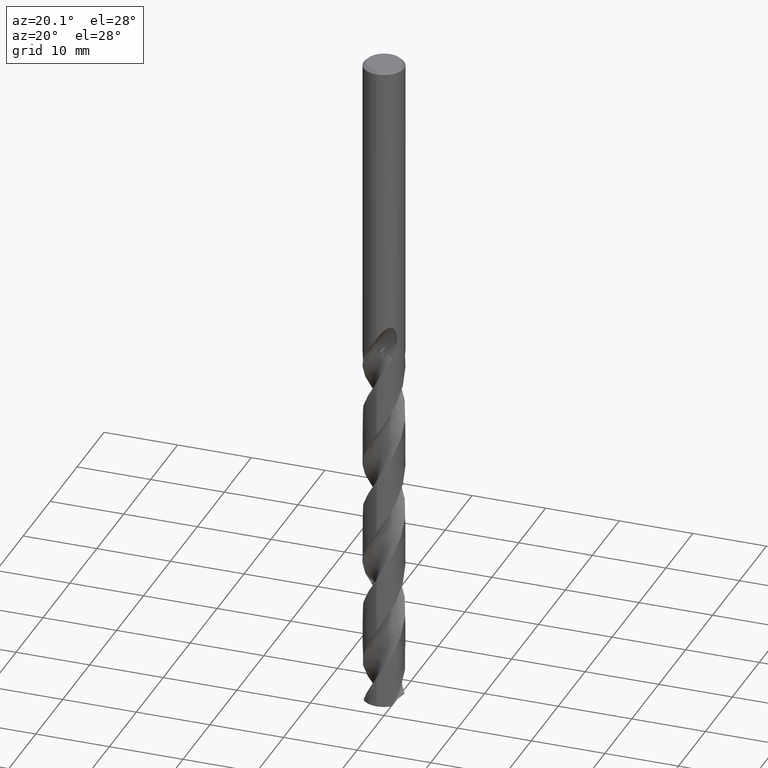
[diagram: clean part render]
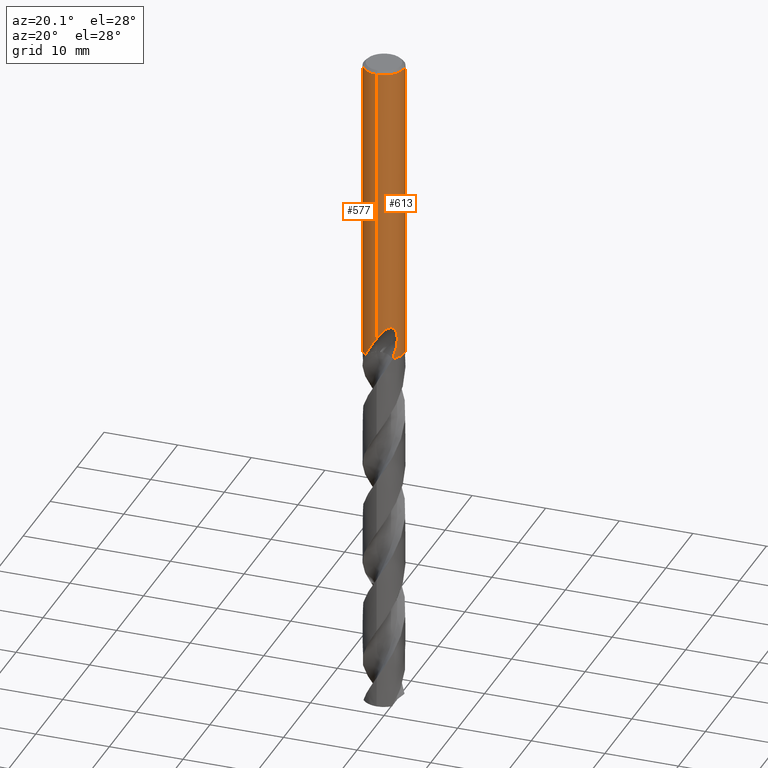
[diagram: same view with one multi-face feature highlighted, each face labeled with its STEP entity id]
A machine part, auxiliary view. The highlighted faces form ONE feature: a constant-radius fillet chain: 2 tangent blend faces with common blend radius 2.75 mm. The faces share edges in the B-rep.
Their STEP definitions:
[1] entity #613 (Cylinder):
#275=VERTEX_POINT('',#774);
#281=VERTEX_POINT('',#780);
#293=VERTEX_POINT('',#793);
#315=EDGE_CURVE('',#481,#371,#821,.T.);
#325=EDGE_CURVE('',#683,#293,#831,.T.);
#329=EDGE_CURVE('',#293,#589,#835,.T.);
#333=VERTEX_POINT('',#840);
#335=EDGE_CURVE('',#281,#643,#842,.T.);
#371=VERTEX_POINT('',#882);
#385=EDGE_CURVE('',#601,#465,#898,.T.);
#405=VERTEX_POINT('',#920);
#417=EDGE_CURVE('',#589,#601,#932,.T.);
#457=EDGE_CURVE('',#481,#281,#976,.T.);
#459=EDGE_CURVE('',#465,#333,#978,.T.);
#465=VERTEX_POINT('',#984);
#475=EDGE_CURVE('',#275,#405,#995,.T.);
#481=VERTEX_POINT('',#1001);
#489=EDGE_CURVE('',#275,#643,#1009,.T.);
#567=EDGE_CURVE('',#607,#661,#1092,.T.);
#587=EDGE_CURVE('',#717,#661,#1114,.T.);
#589=VERTEX_POINT('',#1116);
#601=VERTEX_POINT('',#1128);
#607=VERTEX_POINT('',#1135);
#613=ADVANCED_FACE('',(#1141),#1142,.T.);
#629=EDGE_CURVE('',#333,#607,#1159,.T.);
#643=VERTEX_POINT('',#1175);
#661=VERTEX_POINT('',#1194);
#683=VERTEX_POINT('',#1220);
#717=VERTEX_POINT('',#1258);
#723=EDGE_CURVE('',#683,#405,#1264,.T.);
#737=EDGE_CURVE('',#717,#371,#1279,.T.);
#774=CARTESIAN_POINT('',(1.74996988183907,2.12134518941547,-41.5));
#780=CARTESIAN_POINT('',(2.23751594901622,-1.59875650988449,-39.9991543691702));
#793=CARTESIAN_POINT('',(0.29010312703583,2.73465540346202,-28.9998328990228));
#821=LINE('',#1918,#1919);
#831=B_SPLINE_CURVE_WITH_KNOTS('',3,(#1934,#1935,#1936,#1937,#1938,#1939,#1940,#1941,#1942,#1943,#1944,#1945,#1946,#1947,#1948,#1949),.UNSPECIFIED.,.F.,.F.,(4,2,2,2,2,2,2,4),(5.6933891232618,6.32818769792426,6.64424985784949,6.96031201777471,7.27637417769994,7.59243633762516,7.90679566201298,8.22115498640081),.UNSPECIFIED.);
#835=ELLIPSE('',#1984,8.38198507676688,2.75);
#840=CARTESIAN_POINT('',(1.33721006514658,2.40299172734129,-26.5150484364821));
#842=B_SPLINE_CURVE_WITH_KNOTS('',3,(#1992,#1993,#1994,#1995),.UNSPECIFIED.,.F.,.F.,(4,4),(0.0,1.57521843187853),.UNSPECIFIED.);
#882=CARTESIAN_POINT('',(3.36766747301154E-016,-2.75,-0.399999999999999));
#898=B_SPLINE_CURVE_WITH_KNOTS('',3,(#2532,#2533,#2534,#2535,#2536,#2537,#2538,#2539),.UNSPECIFIED.,.F.,.F.,(4,2,2,4),(8.22114914194285,8.53550843244374,8.84986772294463,9.48352139234592),.UNSPECIFIED.);
#920=CARTESIAN_POINT('',(-8.83017732555575E-013,2.75,-38.5818070135054));
#932=LINE('',#2916,#2917);
#976=B_SPLINE_CURVE_WITH_KNOTS('',3,(#3660,#3661,#3662,#3663,#3664,#3665,#3666,#3667,#3668,#3669,#3670,#3671,#3672,#3673,#3674,#3675,#3676,#3677,#3678,#3679,#3680,#3681,#3682,#3683,#3684,#3685,#3686,#3687,#3688,#3689),.UNSPECIFIED.,.F.,.F.,(4,2,2,2,2,2,2,2,2,2,2,2,2,2,4),(0.0,1.3437091618628,2.07905816346083,2.74564402516208,3.52037638913869,4.45073491943455,5.2548412838454,5.62007727010882,5.88706539598576,6.13974390001736,6.46032615313788,6.92938882101132,7.59618986380533,8.03222990697715,8.4904674430987),.UNSPECIFIED.);
#978=LINE('',#3692,#3693);
#984=CARTESIAN_POINT('',(1.33721006514658,2.40299172734129,-28.2901657003257));
#995=B_SPLINE_CURVE_WITH_KNOTS('',3,(#3714,#3715,#3716,#3717,#3718,#3719,#3720,#3721,#3722,#3723,#3724,#3725,#3726,#3727,#3728,#3729,#3730,#3731,#3732,#3733,#3734,#3735,#3736,#3737,#3738,#3739,#3740,#3741,#3742,#3743),.UNSPECIFIED.,.F.,.F.,(4,2,2,2,2,2,2,2,2,2,2,2,2,2,4),(0.0,1.34370916186281,2.07905816346082,2.74564402516196,3.52037638913841,4.45073491943443,5.25484128384528,5.62007727010868,5.88706539598572,6.13974390001743,6.46032615313794,6.92938882101058,7.59618986380254,8.03222990697311,8.4904674430933),.UNSPECIFIED.);
#1001=CARTESIAN_POINT('',(8.78687862759537E-013,-2.75,-38.5818070135054));
#1009=CIRCLE('',#3939,2.75);
#1092=B_SPLINE_CURVE_WITH_KNOTS('',3,(#5856,#5857,#5858,#5859,#5860,#5861,#5862,#5863,#5864,#5865,#5866,#5867,#5868,#5869,#5870,#5871,#5872,#5873,#5874,#5875,#5876,#5877,#5878,#5879,#5880,#5881,#5882),.UNSPECIFIED.,.F.,.F.,(4,2,3,2,2,2,2,2,2,2,2,2,4),(-0.544781504389989,-0.272390752194994,0.0,0.272390752194996,0.544781504389992,0.819026043088943,1.09327058178789,1.36428028310444,1.63528998442099,1.90725120410565,2.17921242379032,2.45117364347498,2.72313486315964),.UNSPECIFIED.);
#1114=LINE('',#5941,#5942);
#1116=CARTESIAN_POINT('',(0.873560781758957,2.60756429653665,-27.3198931596091));
#1128=CARTESIAN_POINT('',(0.873560781758956,2.60756429653665,-28.7587351791531));
#1135=CARTESIAN_POINT('',(0.799431726384364,2.63123714530829,-26.000000276873));
#1141=FACE_OUTER_BOUND('',#6174,.T.);
#1142=CYLINDRICAL_SURFACE('',#6175,2.75);
#1159=B_SPLINE_CURVE_WITH_KNOTS('',3,(#6635,#6636,#6637,#6638,#6639,#6640,#6641,#6642),.UNSPECIFIED.,.F.,.F.,(4,2,2,4),(0.63365369217847,1.26730738435694,1.58166668501394,1.89602598567094),.UNSPECIFIED.);
#1175=CARTESIAN_POINT('',(1.91278221107144,-1.97579457763418,-41.5));
#1194=CARTESIAN_POINT('',(-1.16429289846349E-015,2.75,-27.0232688117743));
#1220=CARTESIAN_POINT('',(-2.17418747032393E-016,2.75,-29.0310253601033));
#1258=CARTESIAN_POINT('',(0.0,2.75,-0.399999999999999));
#1264=LINE('',#8291,#8292);
#1279=CIRCLE('',#8325,2.75);
#1918=CARTESIAN_POINT('',(3.36766747301154E-016,-2.75,-36.25));
#1919=VECTOR('',#8759,1.0);
#1934=CARTESIAN_POINT('',(-1.52996159165941,2.2851077716482,-28.0332799124806));
#1935=CARTESIAN_POINT('',(-1.44631597300797,2.34111137509018,-28.2324366615127));
#1936=CARTESIAN_POINT('',(-1.32250219035285,2.4162199836653,-28.4115593374441));
#1937=CARTESIAN_POINT('',(-1.11019118417717,2.51715742946781,-28.624151057468));
#1938=CARTESIAN_POINT('',(-1.03027263404493,2.55141531254613,-28.6909833479814));
#1939=CARTESIAN_POINT('',(-0.855212746268426,2.61529978320132,-28.8097518079273));
#1940=CARTESIAN_POINT('',(-0.760062546766947,2.64488607247651,-28.8616965876911));
#1941=CARTESIAN_POINT('',(-0.560004548992131,2.69434822306571,-28.9458777045139));
#1942=CARTESIAN_POINT('',(-0.454895780759893,2.71424255436112,-28.9781809697304));
#1943=CARTESIAN_POINT('',(-0.241751439374123,2.74145929330977,-29.0208867485696));
#1944=CARTESIAN_POINT('',(-0.133710619323009,2.74876716853734,-29.0312723335086));
#1945=CARTESIAN_POINT('',(0.0764186989741135,2.75093445591884,-29.0312723335086));
#1946=CARTESIAN_POINT('',(0.184032629107216,2.74591589544373,-29.0209962157904));
#1947=CARTESIAN_POINT('',(0.396586815044307,2.72335106284905,-28.9785871699004));
#1948=CARTESIAN_POINT('',(0.501531717356681,2.70581958119015,-28.9464696632046));
#1949=CARTESIAN_POINT('',(0.601489911800748,2.68341384918576,-28.9045513793387));
#1984=AXIS2_PLACEMENT_3D('',#8762,#8763,#8764);
#1992=CARTESIAN_POINT('',(2.23751594906884,-1.59875650981085,-39.9991543691992));
#1993=CARTESIAN_POINT('',(2.14915335052935,-1.72242307336822,-40.5017477323628));
#1994=CARTESIAN_POINT('',(2.0427171676928,-1.85000352808121,-41.0072979768417));
#1995=CARTESIAN_POINT('',(1.91278221107145,-1.97579457763418,-41.5));
#2532=CARTESIAN_POINT('',(0.601489632040882,2.6834139118942,-28.9045509476906));
#2533=CARTESIAN_POINT('',(0.701447817945832,2.66100819274862,-28.8626326680444));
#2534=CARTESIAN_POINT('',(0.796623298204717,2.63371412142096,-28.8108447752873));
#2535=CARTESIAN_POINT('',(0.971824923940671,2.57422125505894,-28.6923202375792));
#2536=CARTESIAN_POINT('',(1.05185934280705,2.54206370558293,-28.6255751231171));
#2537=CARTESIAN_POINT('',(1.26503477913766,2.44674249684982,-28.4126694380146));
#2538=CARTESIAN_POINT('',(1.38932928352855,2.37531482409765,-28.2329958584736));
#2539=CARTESIAN_POINT('',(1.47316443649094,2.32212974294253,-28.0334520749841));
#2916=CARTESIAN_POINT('',(0.873560781758957,2.60756429653665,-28.0393141693811));
#2917=VECTOR('',#8859,1.0);
#3660=CARTESIAN_POINT('',(-1.74996988183907,-2.12134518941547,-41.5));
#3661=CARTESIAN_POINT('',(-1.56875403661205,-2.27083631082352,-41.1186466627911));
#3662=CARTESIAN_POINT('',(-1.36059374862,-2.40362250481249,-40.7629200217183));
#3663=CARTESIAN_POINT('',(-0.997625977415595,-2.56652359633653,-40.1684363668679));
#3664=CARTESIAN_POINT('',(-0.866832798877859,-2.61344677877229,-39.9589629714317));
#3665=CARTESIAN_POINT('',(-0.613553441378695,-2.68359227609557,-39.553341794551));
#3666=CARTESIAN_POINT('',(-0.492186908459018,-2.70837462857852,-39.3590668957965));
#3667=CARTESIAN_POINT('',(-0.229425238219361,-2.74411762868622,-38.9402816831765));
#3668=CARTESIAN_POINT('',(-0.085822179045464,-2.75247795021598,-38.7124753474329));
#3669=CARTESIAN_POINT('',(0.233044061092417,-2.74562837072235,-38.22525649303));
#3670=CARTESIAN_POINT('',(0.422126898663132,-2.72479224500972,-37.9480250448905));
#3671=CARTESIAN_POINT('',(0.786300140875971,-2.64088050736189,-37.4916869721627));
#3672=CARTESIAN_POINT('',(0.987392040117657,-2.57714486253417,-37.2694823457717));
#3673=CARTESIAN_POINT('',(1.29197250737324,-2.42991198642466,-37.0611033985666));
#3674=CARTESIAN_POINT('',(1.39294638262973,-2.37424376664441,-37.0095323721426));
#3675=CARTESIAN_POINT('',(1.56988448551531,-2.2596214202516,-36.969935084797));
#3676=CARTESIAN_POINT('',(1.64246073539539,-2.20741888321002,-36.9692135517096));
#3677=CARTESIAN_POINT('',(1.77764118327539,-2.09989181933012,-37.0039425681785));
#3678=CARTESIAN_POINT('',(1.83676368201708,-2.04795713128522,-37.0364906976556));
#3679=CARTESIAN_POINT('',(1.95708251425498,-1.93414230375795,-37.138317951783));
#3680=CARTESIAN_POINT('',(2.01274796524241,-1.8751593201832,-37.21349755478));
#3681=CARTESIAN_POINT('',(2.12676908478436,-1.74636587697711,-37.4193592851681));
#3682=CARTESIAN_POINT('',(2.18126640259901,-1.67623046610188,-37.5720491578608));
#3683=CARTESIAN_POINT('',(2.28373237922148,-1.53542097167685,-37.9992364949133));
#3684=CARTESIAN_POINT('',(2.32076648445131,-1.47545853550842,-38.3034670007577));
#3685=CARTESIAN_POINT('',(2.339051761766,-1.44620982454373,-38.8663620941464));
#3686=CARTESIAN_POINT('',(2.33472724687543,-1.45338013681143,-39.0904325912064));
#3687=CARTESIAN_POINT('',(2.30426371212636,-1.50123741266447,-39.5451790199591));
#3688=CARTESIAN_POINT('',(2.27707670193374,-1.5433898451918,-39.7741435706794));
#3689=CARTESIAN_POINT('',(2.23751594901622,-1.5987565098845,-39.9991543691702));
#3692=CARTESIAN_POINT('',(1.33721006514658,2.40299172734129,-27.4026070684039));
#3693=VECTOR('',#8901,1.0);
#3714=CARTESIAN_POINT('',(1.74996988183907,2.12134518941547,-41.5));
#3715=CARTESIAN_POINT('',(1.56875403661205,2.27083631082352,-41.1186466627911));
#3716=CARTESIAN_POINT('',(1.36059374862,2.40362250481249,-40.7629200217183));
#3717=CARTESIAN_POINT('',(0.997625977415599,2.56652359633652,-40.1684363668679));
#3718=CARTESIAN_POINT('',(0.866832798877866,2.61344677877229,-39.9589629714317));
#3719=CARTESIAN_POINT('',(0.613553441378705,2.68359227609556,-39.553341794551));
#3720=CARTESIAN_POINT('',(0.49218690845904,2.70837462857852,-39.3590668957965));
#3721=CARTESIAN_POINT('',(0.229425238219337,2.74411762868623,-38.9402816831765));
#3722=CARTESIAN_POINT('',(0.0858221790454466,2.75247795021598,-38.7124753474329));
#3723=CARTESIAN_POINT('',(-0.233044061092473,2.74562837072235,-38.2252564930299));
#3724=CARTESIAN_POINT('',(-0.422126898663152,2.72479224500971,-37.9480250448905));
#3725=CARTESIAN_POINT('',(-0.786300140875935,2.6408805073619,-37.4916869721628));
#3726=CARTESIAN_POINT('',(-0.987392040117649,2.57714486253417,-37.2694823457717));
#3727=CARTESIAN_POINT('',(-1.29197250737324,2.42991198642466,-37.0611033985666));
#3728=CARTESIAN_POINT('',(-1.39294638262973,2.37424376664441,-37.0095323721426));
#3729=CARTESIAN_POINT('',(-1.56988448551534,2.25962142025158,-36.969935084797));
#3730=CARTESIAN_POINT('',(-1.64246073539541,2.20741888321002,-36.9692135517096));
#3731=CARTESIAN_POINT('',(-1.77764118327538,2.09989181933013,-37.0039425681785));
#3732=CARTESIAN_POINT('',(-1.83676368201706,2.04795713128524,-37.0364906976556));
#3733=CARTESIAN_POINT('',(-1.95708251425497,1.93414230375796,-37.138317951783));
#3734=CARTESIAN_POINT('',(-2.0127479652424,1.87515932018322,-37.2134975547799));
#3735=CARTESIAN_POINT('',(-2.12676908478426,1.74636587697723,-37.4193592851679));
#3736=CARTESIAN_POINT('',(-2.18126640259894,1.67623046610197,-37.5720491578605));
#3737=CARTESIAN_POINT('',(-2.2837323792215,1.53542097167683,-37.9992364949133));
#3738=CARTESIAN_POINT('',(-2.32076648445131,1.47545853550842,-38.3034670007578));
#3739=CARTESIAN_POINT('',(-2.339051761766,1.44620982454373,-38.8663620941464));
#3740=CARTESIAN_POINT('',(-2.33472724687543,1.45338013681143,-39.0904325912064));
#3741=CARTESIAN_POINT('',(-2.30426371212637,1.50123741266447,-39.5451790199591));
#3742=CARTESIAN_POINT('',(-2.27707670193374,1.54338984519179,-39.7741435706794));
#3743=CARTESIAN_POINT('',(-2.23751594901622,1.59875650988449,-39.9991543691702));
#3939=AXIS2_PLACEMENT_3D('',#8924,#8925,#8926);
#5856=CARTESIAN_POINT('',(0.665771541632002,2.66819194481075,-25.8142466509837));
#5857=CARTESIAN_POINT('',(0.728886384022112,2.65244342791726,-25.8775915883881));
#5858=CARTESIAN_POINT('',(0.783880707173971,2.63619126654373,-25.9578475863508));
#5859=CARTESIAN_POINT('',(0.857153272768013,2.61328560993418,-26.1344476516523));
#5860=CARTESIAN_POINT('',(0.875400981188567,2.60694708847995,-26.2308450951885));
#5861=CARTESIAN_POINT('',(0.875400981188567,2.60694708847995,-26.3216420125868));
#5862=CARTESIAN_POINT('',(0.875400981188567,2.60694708847995,-26.4124389299851));
#5863=CARTESIAN_POINT('',(0.857153272768012,2.61328560993418,-26.5088363735212));
#5864=CARTESIAN_POINT('',(0.783880707173968,2.63619126654374,-26.6854364388227));
#5865=CARTESIAN_POINT('',(0.728886384022113,2.65244342791726,-26.7656924367854));
#5866=CARTESIAN_POINT('',(0.602227163943505,2.68404764004212,-26.8928134128306));
#5867=CARTESIAN_POINT('',(0.521733300217773,2.70154460976948,-26.9482343341297));
#5868=CARTESIAN_POINT('',(0.344541424683386,2.72980587615917,-27.0221021344558));
#5869=CARTESIAN_POINT('',(0.247793037073933,2.74033853472331,-27.0405166027747));
#5870=CARTESIAN_POINT('',(0.0663362759674763,2.75068358664663,-27.0405166027747));
#5871=CARTESIAN_POINT('',(-0.0299116612408722,2.75126246188806,-27.0224894597774));
#5872=CARTESIAN_POINT('',(-0.206833293028733,2.7436398872559,-26.9492693129404));
#5873=CARTESIAN_POINT('',(-0.287522369074154,2.73568166560296,-26.8940883573449));
#5874=CARTESIAN_POINT('',(-0.415119997588476,2.71925130881564,-26.7667840769712));
#5875=CARTESIAN_POINT('',(-0.470538724037373,2.7097040517631,-26.6860287830353));
#5876=CARTESIAN_POINT('',(-0.544159636830953,2.69588446720977,-26.5087981763507));
#5877=CARTESIAN_POINT('',(-0.562348199187247,2.69188864979049,-26.4122957524817));
#5878=CARTESIAN_POINT('',(-0.562348199187247,2.69188864979049,-26.2309882726919));
#5879=CARTESIAN_POINT('',(-0.544159636830955,2.69588446720977,-26.1344858488229));
#5880=CARTESIAN_POINT('',(-0.470538724037374,2.7097040517631,-25.9572552421382));
#5881=CARTESIAN_POINT('',(-0.415119997588476,2.71925130881564,-25.8764999482023));
#5882=CARTESIAN_POINT('',(-0.351209380394395,2.72748088373191,-25.8127362621146));
#5941=CARTESIAN_POINT('',(-3.36766747301154E-016,2.75,-36.25));
#5942=VECTOR('',#9054,1.0);
#6174=EDGE_LOOP('',(#9066,#9067,#9068,#9069,#9070,#9071,#9072,#9073,#9074,#9075,#9076,#9077,#9078,#9079,#9080));
#6175=AXIS2_PLACEMENT_3D('',#9081,#9082,#9083);
#6635=CARTESIAN_POINT('',(1.47316444420588,2.32212973804815,-26.7717620750811));
#6636=CARTESIAN_POINT('',(1.38932928819419,2.37531482152837,-26.5722182845909));
#6637=CARTESIAN_POINT('',(1.2650347793022,2.44674249712733,-26.3925446987512));
#6638=CARTESIAN_POINT('',(1.05185933527012,2.54206370877889,-26.1796390063729));
#6639=CARTESIAN_POINT('',(0.971824913698824,2.5742212590321,-26.1128938897649));
#6640=CARTESIAN_POINT('',(0.796623282041988,2.63371412641395,-25.9943693482392));
#6641=CARTESIAN_POINT('',(0.701447798566565,2.66100819798206,-25.9425814538105));
#6642=CARTESIAN_POINT('',(0.601489609302798,2.68341391699096,-25.9006631728201));
#8291=CARTESIAN_POINT('',(-3.36766747301154E-016,2.75,-36.25));
#8292=VECTOR('',#9209,1.0);
#8325=AXIS2_PLACEMENT_3D('',#9222,#9223,#9224);
#8759=DIRECTION('',(-0.0,-0.0,1.0));
#8762=CARTESIAN_POINT('',(0.0,0.0,-29.8351219173269));
#8763=DIRECTION('',(0.944648353914092,0.0,-0.328084573619969));
#8764=DIRECTION('',(0.328084573619969,-0.0,0.944648353914092));
#8859=DIRECTION('',(0.0,0.0,-1.0));
#8901=DIRECTION('',(-0.0,-0.0,1.0));
#8924=CARTESIAN_POINT('',(0.0,0.0,-41.5));
#8925=DIRECTION('',(0.0,0.0,-1.0));
#8926=DIRECTION('',(0.0,1.0,0.0));
#9054=DIRECTION('',(0.0,0.0,-1.0));
#9066=ORIENTED_EDGE('',*,*,#587,.F.);
#9067=ORIENTED_EDGE('',*,*,#737,.T.);
#9068=ORIENTED_EDGE('',*,*,#315,.F.);
#9069=ORIENTED_EDGE('',*,*,#457,.T.);
#9070=ORIENTED_EDGE('',*,*,#335,.T.);
#9071=ORIENTED_EDGE('',*,*,#489,.F.);
#9072=ORIENTED_EDGE('',*,*,#475,.T.);
#9073=ORIENTED_EDGE('',*,*,#723,.F.);
#9074=ORIENTED_EDGE('',*,*,#325,.T.);
#9075=ORIENTED_EDGE('',*,*,#329,.T.);
#9076=ORIENTED_EDGE('',*,*,#417,.T.);
#9077=ORIENTED_EDGE('',*,*,#385,.T.);
#9078=ORIENTED_EDGE('',*,*,#459,.T.);
#9079=ORIENTED_EDGE('',*,*,#629,.T.);
#9080=ORIENTED_EDGE('',*,*,#567,.T.);
#9081=CARTESIAN_POINT('',(0.0,0.0,-36.25));
#9082=DIRECTION('',(-0.0,-0.0,1.0));
#9083=DIRECTION('',(0.0,1.0,0.0));
#9209=DIRECTION('',(0.0,0.0,-1.0));
#9222=CARTESIAN_POINT('',(0.0,0.0,-0.399999999999999));
#9223=DIRECTION('',(0.0,0.0,-1.0));
#9224=DIRECTION('',(0.0,1.0,0.0));
[2] entity #577 (Cylinder):
#315=EDGE_CURVE('',#481,#371,#821,.T.);
#327=EDGE_CURVE('',#405,#649,#833,.T.);
#345=EDGE_CURVE('',#729,#673,#854,.T.);
#347=EDGE_CURVE('',#513,#481,#856,.T.);
#371=VERTEX_POINT('',#882);
#387=EDGE_CURVE('',#371,#717,#900,.T.);
#405=VERTEX_POINT('',#920);
#433=VERTEX_POINT('',#950);
#469=VERTEX_POINT('',#988);
#481=VERTEX_POINT('',#1001);
#487=VERTEX_POINT('',#1007);
#513=VERTEX_POINT('',#1034);
#533=EDGE_CURVE('',#725,#469,#1057,.T.);
#541=EDGE_CURVE('',#513,#433,#1065,.T.);
#571=EDGE_CURVE('',#661,#487,#1096,.T.);
#577=ADVANCED_FACE('',(#1102),#1103,.T.);
#587=EDGE_CURVE('',#717,#661,#1114,.T.);
#597=EDGE_CURVE('',#469,#683,#1124,.T.);
#619=EDGE_CURVE('',#487,#729,#1149,.T.);
#647=EDGE_CURVE('',#649,#433,#1179,.T.);
#649=VERTEX_POINT('',#1181);
#657=EDGE_CURVE('',#715,#725,#1190,.T.);
#661=VERTEX_POINT('',#1194);
#673=VERTEX_POINT('',#1209);
#683=VERTEX_POINT('',#1220);
#715=VERTEX_POINT('',#1256);
#717=VERTEX_POINT('',#1258);
#723=EDGE_CURVE('',#683,#405,#1264,.T.);
#725=VERTEX_POINT('',#1266);
#729=VERTEX_POINT('',#1270);
#733=EDGE_CURVE('',#673,#715,#1275,.T.);
#821=LINE('',#1918,#1919);
#833=B_SPLINE_CURVE_WITH_KNOTS('',3,(#1952,#1953,#1954,#1955,#1956,#1957,#1958,#1959,#1960,#1961,#1962,#1963,#1964,#1965,#1966,#1967,#1968,#1969,#1970,#1971,#1972,#1973,#1974,#1975,#1976,#1977,#1978,#1979,#1980,#1981),.UNSPECIFIED.,.F.,.F.,(4,2,2,2,2,2,2,2,2,2,2,2,2,2,4),(0.0,1.34370916186281,2.07905816346082,2.74564402516196,3.52037638913841,4.45073491943443,5.25484128384528,5.62007727010868,5.88706539598572,6.13974390001743,6.46032615313794,6.92938882101058,7.59618986380254,8.03222990697311,8.4904674430933),.UNSPECIFIED.);
#854=CIRCLE('',#2023,2.75);
#856=B_SPLINE_CURVE_WITH_KNOTS('',3,(#2026,#2027,#2028,#2029,#2030,#2031,#2032,#2033,#2034,#2035,#2036,#2037,#2038,#2039,#2040,#2041,#2042,#2043,#2044,#2045,#2046,#2047,#2048,#2049,#2050,#2051,#2052,#2053,#2054,#2055),.UNSPECIFIED.,.F.,.F.,(4,2,2,2,2,2,2,2,2,2,2,2,2,2,4),(0.0,1.3437091618628,2.07905816346083,2.74564402516208,3.52037638913869,4.45073491943455,5.2548412838454,5.62007727010882,5.88706539598576,6.13974390001736,6.46032615313788,6.92938882101132,7.59618986380533,8.03222990697715,8.4904674430987),.UNSPECIFIED.);
#882=CARTESIAN_POINT('',(3.36766747301154E-016,-2.75,-0.399999999999999));
#900=CIRCLE('',#2542,2.75);
#920=CARTESIAN_POINT('',(-8.83017732555575E-013,2.75,-38.5818070135054));
#950=CARTESIAN_POINT('',(-1.91278221107145,1.97579457763418,-41.5));
#988=CARTESIAN_POINT('',(-1.337052752443,2.40307926152772,-28.3720803908795));
#1001=CARTESIAN_POINT('',(8.78687862759537E-013,-2.75,-38.5818070135054));
#1007=CARTESIAN_POINT('',(-0.486378944383046,2.70664654553579,-26.6432837483006));
#1034=CARTESIAN_POINT('',(-1.74996988183907,-2.12134518941547,-41.5));
#1057=ELLIPSE('',#4545,3.06605318811787,2.75);
#1065=CIRCLE('',#4719,2.75);
#1096=B_SPLINE_CURVE_WITH_KNOTS('',3,(#5888,#5889,#5890,#5891,#5892,#5893,#5894,#5895,#5896,#5897,#5898,#5899,#5900,#5901,#5902,#5903,#5904,#5905,#5906,#5907,#5908,#5909,#5910,#5911,#5912,#5913,#5914),.UNSPECIFIED.,.F.,.F.,(4,2,3,2,2,2,2,2,2,2,2,2,4),(-0.544781504389989,-0.272390752194994,0.0,0.272390752194996,0.544781504389992,0.819026043088943,1.09327058178789,1.36428028310444,1.63528998442099,1.90725120410565,2.17921242379032,2.45117364347498,2.72313486315964),.UNSPECIFIED.);
#1102=FACE_OUTER_BOUND('',#5922,.T.);
#1103=CYLINDRICAL_SURFACE('',#5923,2.75);
#1114=LINE('',#5941,#5942);
#1124=B_SPLINE_CURVE_WITH_KNOTS('',3,(#5959,#5960,#5961,#5962,#5963,#5964,#5965,#5966,#5967,#5968,#5969,#5970,#5971,#5972,#5973,#5974),.UNSPECIFIED.,.F.,.F.,(4,2,2,2,2,2,2,4),(5.6933891232618,6.32818769792426,6.64424985784949,6.96031201777471,7.27637417769994,7.59243633762516,7.90679566201298,8.22115498640081),.UNSPECIFIED.);
#1149=B_SPLINE_CURVE_WITH_KNOTS('',3,(#6586,#6587,#6588,#6589,#6590,#6591,#6592,#6593,#6594,#6595,#6596,#6597,#6598,#6599,#6600,#6601,#6602,#6603,#6604,#6605,#6606,#6607,#6608,#6609,#6610,#6611,#6612),.UNSPECIFIED.,.F.,.F.,(4,2,3,2,2,2,2,2,2,2,2,2,4),(-0.544781504389989,-0.272390752194994,0.0,0.272390752194996,0.544781504389992,0.819026043088943,1.09327058178789,1.36428028310444,1.63528998442099,1.90725120410565,2.17921242379032,2.45117364347498,2.72313486315964),.UNSPECIFIED.);
#1179=B_SPLINE_CURVE_WITH_KNOTS('',3,(#6700,#6701,#6702,#6703),.UNSPECIFIED.,.F.,.F.,(4,4),(0.0,1.57521843187821),.UNSPECIFIED.);
#1181=CARTESIAN_POINT('',(-2.23751594901622,1.59875650988449,-39.9991543691702));
#1190=LINE('',#6716,#6717);
#1194=CARTESIAN_POINT('',(-1.16429289846349E-015,2.75,-27.0232688117743));
#1209=CARTESIAN_POINT('',(-1.0350734039088,2.54776824858947,-26.3171221986971));
#1220=CARTESIAN_POINT('',(-2.17418747032393E-016,2.75,-29.0310253601033));
#1256=CARTESIAN_POINT('',(2.35719168458961E-016,2.75,-27.5000801551881));
#1258=CARTESIAN_POINT('',(0.0,2.75,-0.399999999999999));
#1264=LINE('',#8291,#8292);
#1266=CARTESIAN_POINT('',(-3.36766747301154E-016,2.75,-27.7128911336578));
#1270=CARTESIAN_POINT('',(-0.562333990228013,2.69189161806976,-26.3171221986971));
#1275=B_SPLINE_CURVE_WITH_KNOTS('',3,(#8306,#8307,#8308,#8309,#8310,#8311,#8312,#8313,#8314,#8315,#8316,#8317,#8318,#8319),.UNSPECIFIED.,.F.,.F.,(4,2,2,2,2,2,4),(3.1689505620908,3.62058983596025,4.07222910982969,4.52386838369914,4.97214383447981,5.42041928526047,5.87740577220252),.UNSPECIFIED.);
#1918=CARTESIAN_POINT('',(3.36766747301154E-016,-2.75,-36.25));
#1919=VECTOR('',#8759,1.0);
#1952=CARTESIAN_POINT('',(1.74996988183907,2.12134518941547,-41.5));
#1953=CARTESIAN_POINT('',(1.56875403661205,2.27083631082352,-41.1186466627911));
#1954=CARTESIAN_POINT('',(1.36059374862,2.40362250481249,-40.7629200217183));
#1955=CARTESIAN_POINT('',(0.997625977415599,2.56652359633652,-40.1684363668679));
#1956=CARTESIAN_POINT('',(0.866832798877866,2.61344677877229,-39.9589629714317));
#1957=CARTESIAN_POINT('',(0.613553441378705,2.68359227609556,-39.553341794551));
#1958=CARTESIAN_POINT('',(0.49218690845904,2.70837462857852,-39.3590668957965));
#1959=CARTESIAN_POINT('',(0.229425238219337,2.74411762868623,-38.9402816831765));
#1960=CARTESIAN_POINT('',(0.0858221790454466,2.75247795021598,-38.7124753474329));
#1961=CARTESIAN_POINT('',(-0.233044061092473,2.74562837072235,-38.2252564930299));
#1962=CARTESIAN_POINT('',(-0.422126898663152,2.72479224500971,-37.9480250448905));
#1963=CARTESIAN_POINT('',(-0.786300140875935,2.6408805073619,-37.4916869721628));
#1964=CARTESIAN_POINT('',(-0.987392040117649,2.57714486253417,-37.2694823457717));
#1965=CARTESIAN_POINT('',(-1.29197250737324,2.42991198642466,-37.0611033985666));
#1966=CARTESIAN_POINT('',(-1.39294638262973,2.37424376664441,-37.0095323721426));
#1967=CARTESIAN_POINT('',(-1.56988448551534,2.25962142025158,-36.969935084797));
#1968=CARTESIAN_POINT('',(-1.64246073539541,2.20741888321002,-36.9692135517096));
#1969=CARTESIAN_POINT('',(-1.77764118327538,2.09989181933013,-37.0039425681785));
#1970=CARTESIAN_POINT('',(-1.83676368201706,2.04795713128524,-37.0364906976556));
#1971=CARTESIAN_POINT('',(-1.95708251425497,1.93414230375796,-37.138317951783));
#1972=CARTESIAN_POINT('',(-2.0127479652424,1.87515932018322,-37.2134975547799));
#1973=CARTESIAN_POINT('',(-2.12676908478426,1.74636587697723,-37.4193592851679));
#1974=CARTESIAN_POINT('',(-2.18126640259894,1.67623046610197,-37.5720491578605));
#1975=CARTESIAN_POINT('',(-2.2837323792215,1.53542097167683,-37.9992364949133));
#1976=CARTESIAN_POINT('',(-2.32076648445131,1.47545853550842,-38.3034670007578));
#1977=CARTESIAN_POINT('',(-2.339051761766,1.44620982454373,-38.8663620941464));
#1978=CARTESIAN_POINT('',(-2.33472724687543,1.45338013681143,-39.0904325912064));
#1979=CARTESIAN_POINT('',(-2.30426371212637,1.50123741266447,-39.5451790199591));
#1980=CARTESIAN_POINT('',(-2.27707670193374,1.54338984519179,-39.7741435706794));
#1981=CARTESIAN_POINT('',(-2.23751594901622,1.59875650988449,-39.9991543691702));
#2023=AXIS2_PLACEMENT_3D('',#8789,#8790,#8791);
#2026=CARTESIAN_POINT('',(-1.74996988183907,-2.12134518941547,-41.5));
#2027=CARTESIAN_POINT('',(-1.56875403661205,-2.27083631082352,-41.1186466627911));
#2028=CARTESIAN_POINT('',(-1.36059374862,-2.40362250481249,-40.7629200217183));
#2029=CARTESIAN_POINT('',(-0.997625977415595,-2.56652359633653,-40.1684363668679));
#2030=CARTESIAN_POINT('',(-0.866832798877859,-2.61344677877229,-39.9589629714317));
#2031=CARTESIAN_POINT('',(-0.613553441378695,-2.68359227609557,-39.553341794551));
#2032=CARTESIAN_POINT('',(-0.492186908459018,-2.70837462857852,-39.3590668957965));
#2033=CARTESIAN_POINT('',(-0.229425238219361,-2.74411762868622,-38.9402816831765));
#2034=CARTESIAN_POINT('',(-0.085822179045464,-2.75247795021598,-38.7124753474329));
#2035=CARTESIAN_POINT('',(0.233044061092417,-2.74562837072235,-38.22525649303));
#2036=CARTESIAN_POINT('',(0.422126898663132,-2.72479224500972,-37.9480250448905));
#2037=CARTESIAN_POINT('',(0.786300140875971,-2.64088050736189,-37.4916869721627));
#2038=CARTESIAN_POINT('',(0.987392040117657,-2.57714486253417,-37.2694823457717));
#2039=CARTESIAN_POINT('',(1.29197250737324,-2.42991198642466,-37.0611033985666));
#2040=CARTESIAN_POINT('',(1.39294638262973,-2.37424376664441,-37.0095323721426));
#2041=CARTESIAN_POINT('',(1.56988448551531,-2.2596214202516,-36.969935084797));
#2042=CARTESIAN_POINT('',(1.64246073539539,-2.20741888321002,-36.9692135517096));
#2043=CARTESIAN_POINT('',(1.77764118327539,-2.09989181933012,-37.0039425681785));
#2044=CARTESIAN_POINT('',(1.83676368201708,-2.04795713128522,-37.0364906976556));
#2045=CARTESIAN_POINT('',(1.95708251425498,-1.93414230375795,-37.138317951783));
#2046=CARTESIAN_POINT('',(2.01274796524241,-1.8751593201832,-37.21349755478));
#2047=CARTESIAN_POINT('',(2.12676908478436,-1.74636587697711,-37.4193592851681));
#2048=CARTESIAN_POINT('',(2.18126640259901,-1.67623046610188,-37.5720491578608));
#2049=CARTESIAN_POINT('',(2.28373237922148,-1.53542097167685,-37.9992364949133));
#2050=CARTESIAN_POINT('',(2.32076648445131,-1.47545853550842,-38.3034670007577));
#2051=CARTESIAN_POINT('',(2.339051761766,-1.44620982454373,-38.8663620941464));
#2052=CARTESIAN_POINT('',(2.33472724687543,-1.45338013681143,-39.0904325912064));
#2053=CARTESIAN_POINT('',(2.30426371212636,-1.50123741266447,-39.5451790199591));
#2054=CARTESIAN_POINT('',(2.27707670193374,-1.5433898451918,-39.7741435706794));
#2055=CARTESIAN_POINT('',(2.23751594901622,-1.5987565098845,-39.9991543691702));
#2542=AXIS2_PLACEMENT_3D('',#8832,#8833,#8834);
#4545=AXIS2_PLACEMENT_3D('',#8986,#8987,#8988);
#4719=AXIS2_PLACEMENT_3D('',#8992,#8993,#8994);
#5888=CARTESIAN_POINT('',(0.665771541632002,2.66819194481075,-25.8142466509837));
#5889=CARTESIAN_POINT('',(0.728886384022112,2.65244342791726,-25.8775915883881));
#5890=CARTESIAN_POINT('',(0.783880707173971,2.63619126654373,-25.9578475863508));
#5891=CARTESIAN_POINT('',(0.857153272768013,2.61328560993418,-26.1344476516523));
#5892=CARTESIAN_POINT('',(0.875400981188567,2.60694708847995,-26.2308450951885));
#5893=CARTESIAN_POINT('',(0.875400981188567,2.60694708847995,-26.3216420125868));
#5894=CARTESIAN_POINT('',(0.875400981188567,2.60694708847995,-26.4124389299851));
#5895=CARTESIAN_POINT('',(0.857153272768012,2.61328560993418,-26.5088363735212));
#5896=CARTESIAN_POINT('',(0.783880707173968,2.63619126654374,-26.6854364388227));
#5897=CARTESIAN_POINT('',(0.728886384022113,2.65244342791726,-26.7656924367854));
#5898=CARTESIAN_POINT('',(0.602227163943505,2.68404764004212,-26.8928134128306));
#5899=CARTESIAN_POINT('',(0.521733300217773,2.70154460976948,-26.9482343341297));
#5900=CARTESIAN_POINT('',(0.344541424683386,2.72980587615917,-27.0221021344558));
#5901=CARTESIAN_POINT('',(0.247793037073933,2.74033853472331,-27.0405166027747));
#5902=CARTESIAN_POINT('',(0.0663362759674763,2.75068358664663,-27.0405166027747));
#5903=CARTESIAN_POINT('',(-0.0299116612408722,2.75126246188806,-27.0224894597774));
#5904=CARTESIAN_POINT('',(-0.206833293028733,2.7436398872559,-26.9492693129404));
#5905=CARTESIAN_POINT('',(-0.287522369074154,2.73568166560296,-26.8940883573449));
#5906=CARTESIAN_POINT('',(-0.415119997588476,2.71925130881564,-26.7667840769712));
#5907=CARTESIAN_POINT('',(-0.470538724037373,2.7097040517631,-26.6860287830353));
#5908=CARTESIAN_POINT('',(-0.544159636830953,2.69588446720977,-26.5087981763507));
#5909=CARTESIAN_POINT('',(-0.562348199187247,2.69188864979049,-26.4122957524817));
#5910=CARTESIAN_POINT('',(-0.562348199187247,2.69188864979049,-26.2309882726919));
#5911=CARTESIAN_POINT('',(-0.544159636830955,2.69588446720977,-26.1344858488229));
#5912=CARTESIAN_POINT('',(-0.470538724037374,2.7097040517631,-25.9572552421382));
#5913=CARTESIAN_POINT('',(-0.415119997588476,2.71925130881564,-25.8764999482023));
#5914=CARTESIAN_POINT('',(-0.351209380394395,2.72748088373191,-25.8127362621146));
#5922=EDGE_LOOP('',(#9024,#9025,#9026,#9027,#9028,#9029,#9030,#9031,#9032,#9033,#9034,#9035,#9036,#9037,#9038));
#5923=AXIS2_PLACEMENT_3D('',#9039,#9040,#9041);
#5941=CARTESIAN_POINT('',(-3.36766747301154E-016,2.75,-36.25));
#5942=VECTOR('',#9054,1.0);
#5959=CARTESIAN_POINT('',(-1.52996159165941,2.2851077716482,-28.0332799124806));
#5960=CARTESIAN_POINT('',(-1.44631597300797,2.34111137509018,-28.2324366615127));
#5961=CARTESIAN_POINT('',(-1.32250219035285,2.4162199836653,-28.4115593374441));
#5962=CARTESIAN_POINT('',(-1.11019118417717,2.51715742946781,-28.624151057468));
#5963=CARTESIAN_POINT('',(-1.03027263404493,2.55141531254613,-28.6909833479814));
#5964=CARTESIAN_POINT('',(-0.855212746268426,2.61529978320132,-28.8097518079273));
#5965=CARTESIAN_POINT('',(-0.760062546766947,2.64488607247651,-28.8616965876911));
#5966=CARTESIAN_POINT('',(-0.560004548992131,2.69434822306571,-28.9458777045139));
#5967=CARTESIAN_POINT('',(-0.454895780759893,2.71424255436112,-28.9781809697304));
#5968=CARTESIAN_POINT('',(-0.241751439374123,2.74145929330977,-29.0208867485696));
#5969=CARTESIAN_POINT('',(-0.133710619323009,2.74876716853734,-29.0312723335086));
#5970=CARTESIAN_POINT('',(0.0764186989741135,2.75093445591884,-29.0312723335086));
#5971=CARTESIAN_POINT('',(0.184032629107216,2.74591589544373,-29.0209962157904));
#5972=CARTESIAN_POINT('',(0.396586815044307,2.72335106284905,-28.9785871699004));
#5973=CARTESIAN_POINT('',(0.501531717356681,2.70581958119015,-28.9464696632046));
#5974=CARTESIAN_POINT('',(0.601489911800748,2.68341384918576,-28.9045513793387));
#6586=CARTESIAN_POINT('',(0.665771541632002,2.66819194481075,-25.8142466509837));
#6587=CARTESIAN_POINT('',(0.728886384022112,2.65244342791726,-25.8775915883881));
#6588=CARTESIAN_POINT('',(0.783880707173971,2.63619126654373,-25.9578475863508));
#6589=CARTESIAN_POINT('',(0.857153272768013,2.61328560993418,-26.1344476516523));
#6590=CARTESIAN_POINT('',(0.875400981188567,2.60694708847995,-26.2308450951885));
#6591=CARTESIAN_POINT('',(0.875400981188567,2.60694708847995,-26.3216420125868));
#6592=CARTESIAN_POINT('',(0.875400981188567,2.60694708847995,-26.4124389299851));
#6593=CARTESIAN_POINT('',(0.857153272768012,2.61328560993418,-26.5088363735212));
#6594=CARTESIAN_POINT('',(0.783880707173968,2.63619126654374,-26.6854364388227));
#6595=CARTESIAN_POINT('',(0.728886384022113,2.65244342791726,-26.7656924367854));
#6596=CARTESIAN_POINT('',(0.602227163943505,2.68404764004212,-26.8928134128306));
#6597=CARTESIAN_POINT('',(0.521733300217773,2.70154460976948,-26.9482343341297));
#6598=CARTESIAN_POINT('',(0.344541424683386,2.72980587615917,-27.0221021344558));
#6599=CARTESIAN_POINT('',(0.247793037073933,2.74033853472331,-27.0405166027747));
#6600=CARTESIAN_POINT('',(0.0663362759674763,2.75068358664663,-27.0405166027747));
#6601=CARTESIAN_POINT('',(-0.0299116612408722,2.75126246188806,-27.0224894597774));
#6602=CARTESIAN_POINT('',(-0.206833293028733,2.7436398872559,-26.9492693129404));
#6603=CARTESIAN_POINT('',(-0.287522369074154,2.73568166560296,-26.8940883573449));
#6604=CARTESIAN_POINT('',(-0.415119997588476,2.71925130881564,-26.7667840769712));
#6605=CARTESIAN_POINT('',(-0.470538724037373,2.7097040517631,-26.6860287830353));
#6606=CARTESIAN_POINT('',(-0.544159636830953,2.69588446720977,-26.5087981763507));
#6607=CARTESIAN_POINT('',(-0.562348199187247,2.69188864979049,-26.4122957524817));
#6608=CARTESIAN_POINT('',(-0.562348199187247,2.69188864979049,-26.2309882726919));
#6609=CARTESIAN_POINT('',(-0.544159636830955,2.69588446720977,-26.1344858488229));
#6610=CARTESIAN_POINT('',(-0.470538724037374,2.7097040517631,-25.9572552421382));
#6611=CARTESIAN_POINT('',(-0.415119997588476,2.71925130881564,-25.8764999482023));
#6612=CARTESIAN_POINT('',(-0.351209380394395,2.72748088373191,-25.8127362621146));
#6700=CARTESIAN_POINT('',(-2.23751594906884,1.59875650981085,-39.9991543691992));
#6701=CARTESIAN_POINT('',(-2.14915335052937,1.72242307336819,-40.5017477323627));
#6702=CARTESIAN_POINT('',(-2.04271716769281,1.8500035280812,-41.0072979768417));
#6703=CARTESIAN_POINT('',(-1.91278221107145,1.97579457763418,-41.5));
#6716=CARTESIAN_POINT('',(-3.36766747301154E-016,2.75,-36.25));
#6717=VECTOR('',#9116,1.0);
#8291=CARTESIAN_POINT('',(-3.36766747301154E-016,2.75,-36.25));
#8292=VECTOR('',#9209,1.0);
#8306=CARTESIAN_POINT('',(-0.943825986209588,2.58296196405512,-25.8706098036075));
#8307=CARTESIAN_POINT('',(-1.00466420228044,2.5607314329689,-26.0163710954904));
#8308=CARTESIAN_POINT('',(-1.03510901790186,2.54775377951996,-26.1757554361096));
#8309=CARTESIAN_POINT('',(-1.03510901790186,2.54775377951996,-26.4768482853559));
#8310=CARTESIAN_POINT('',(-1.00466420228044,2.5607314329689,-26.6362326259752));
#8311=CARTESIAN_POINT('',(-0.882987770139003,2.60519249514174,-26.927755209741));
#8312=CARTESIAN_POINT('',(-0.791819275645219,2.63576657120834,-27.0600577485393));
#8313=CARTESIAN_POINT('',(-0.582738565140193,2.68969973642772,-27.2682869874135));
#8314=CARTESIAN_POINT('',(-0.450668400484263,2.71676049972456,-27.3588009653003));
#8315=CARTESIAN_POINT('',(-0.159972982097746,2.74923594208533,-27.4793787755192));
#8316=CARTESIAN_POINT('',(-0.00125096834074262,2.75405633758798,-27.5093686300866));
#8317=CARTESIAN_POINT('',(0.300065944216968,2.73782112294792,-27.5093686300866));
#8318=CARTESIAN_POINT('',(0.460151466445165,2.71534070393564,-27.4783237909351));
#8319=CARTESIAN_POINT('',(0.605861468814535,2.6824302191494,-27.4171598562458));
#8759=DIRECTION('',(-0.0,-0.0,1.0));
#8789=CARTESIAN_POINT('',(0.0,0.0,-26.3171221986971));
#8790=DIRECTION('',(0.0,-0.0,1.0));
#8791=DIRECTION('',(0.0,1.0,0.0));
#8832=CARTESIAN_POINT('',(0.0,0.0,-0.399999999999999));
#8833=DIRECTION('',(0.0,0.0,-1.0));
#8834=DIRECTION('',(0.0,1.0,0.0));
#8986=CARTESIAN_POINT('',(0.0,0.0,-27.7128911336578));
#8987=DIRECTION('',(-0.442195774284071,0.0,0.896918556617774));
#8988=DIRECTION('',(0.896918556617774,-0.0,0.442195774284071));
#8992=CARTESIAN_POINT('',(0.0,0.0,-41.5));
#8993=DIRECTION('',(0.0,0.0,-1.0));
#8994=DIRECTION('',(0.0,1.0,0.0));
#9024=ORIENTED_EDGE('',*,*,#587,.T.);
#9025=ORIENTED_EDGE('',*,*,#571,.T.);
#9026=ORIENTED_EDGE('',*,*,#619,.T.);
#9027=ORIENTED_EDGE('',*,*,#345,.T.);
#9028=ORIENTED_EDGE('',*,*,#733,.T.);
#9029=ORIENTED_EDGE('',*,*,#657,.T.);
#9030=ORIENTED_EDGE('',*,*,#533,.T.);
#9031=ORIENTED_EDGE('',*,*,#597,.T.);
#9032=ORIENTED_EDGE('',*,*,#723,.T.);
#9033=ORIENTED_EDGE('',*,*,#327,.T.);
#9034=ORIENTED_EDGE('',*,*,#647,.T.);
#9035=ORIENTED_EDGE('',*,*,#541,.F.);
#9036=ORIENTED_EDGE('',*,*,#347,.T.);
#9037=ORIENTED_EDGE('',*,*,#315,.T.);
#9038=ORIENTED_EDGE('',*,*,#387,.T.);
#9039=CARTESIAN_POINT('',(0.0,0.0,-36.25));
#9040=DIRECTION('',(-0.0,-0.0,1.0));
#9041=DIRECTION('',(0.0,1.0,0.0));
#9054=DIRECTION('',(0.0,0.0,-1.0));
#9116=DIRECTION('',(0.0,0.0,-1.0));
#9209=DIRECTION('',(0.0,0.0,-1.0));